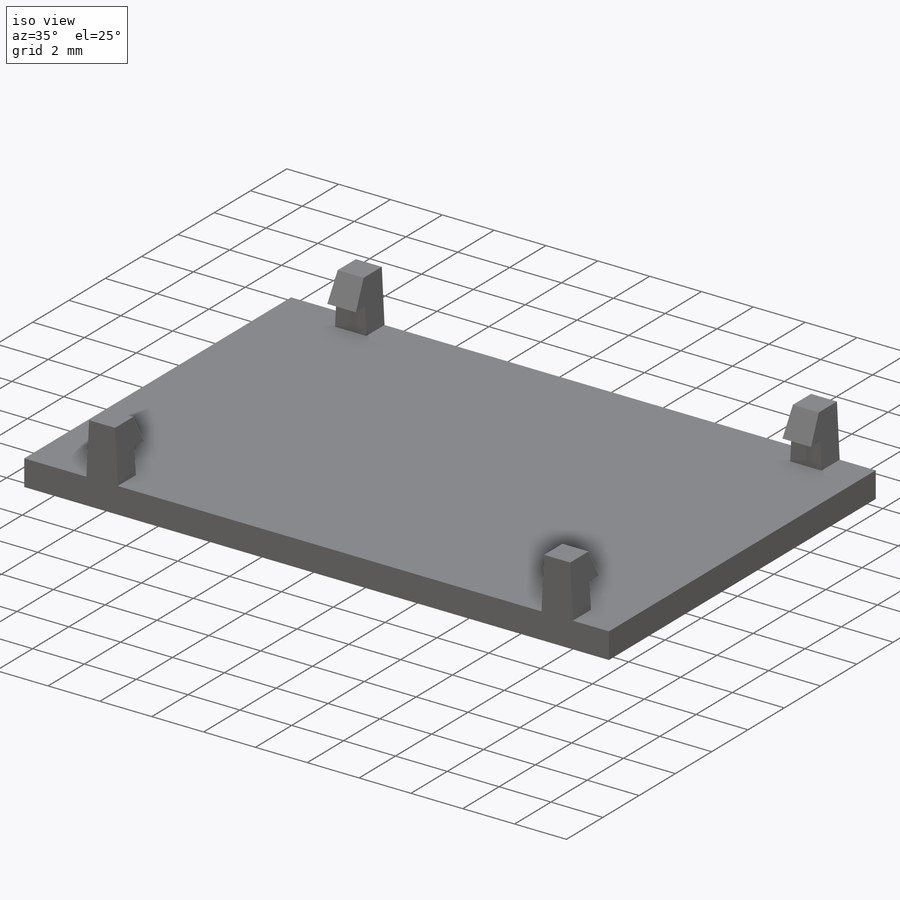
[diagram: iso view]
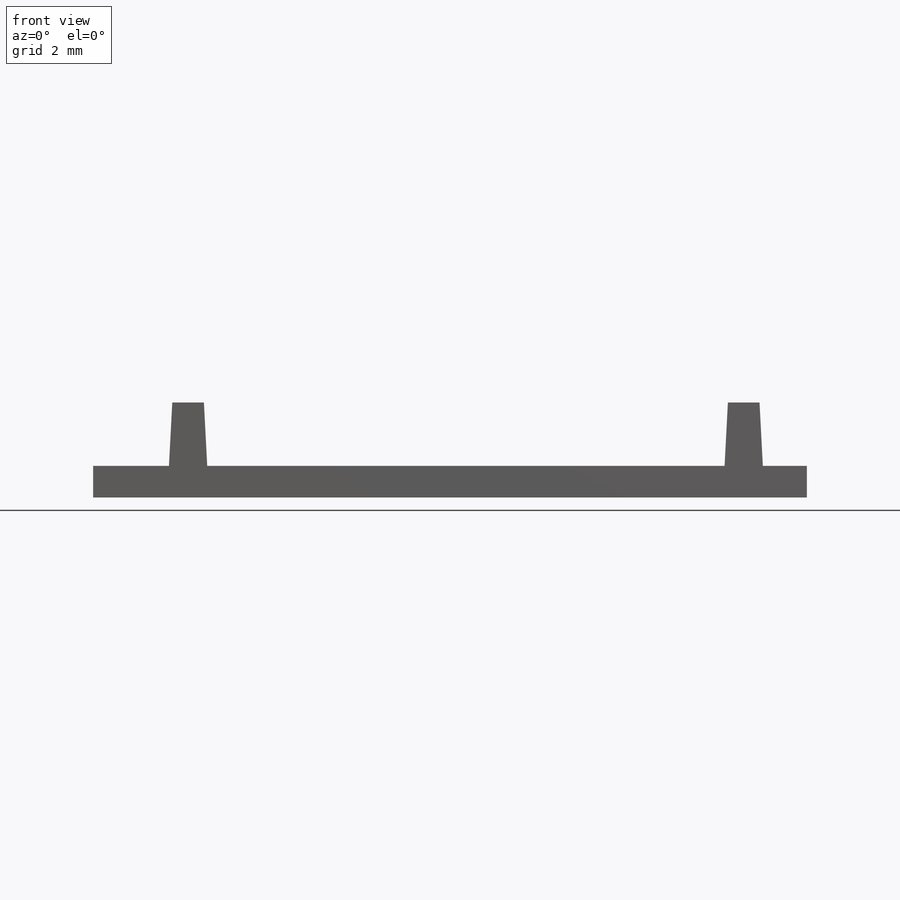
[diagram: front view]
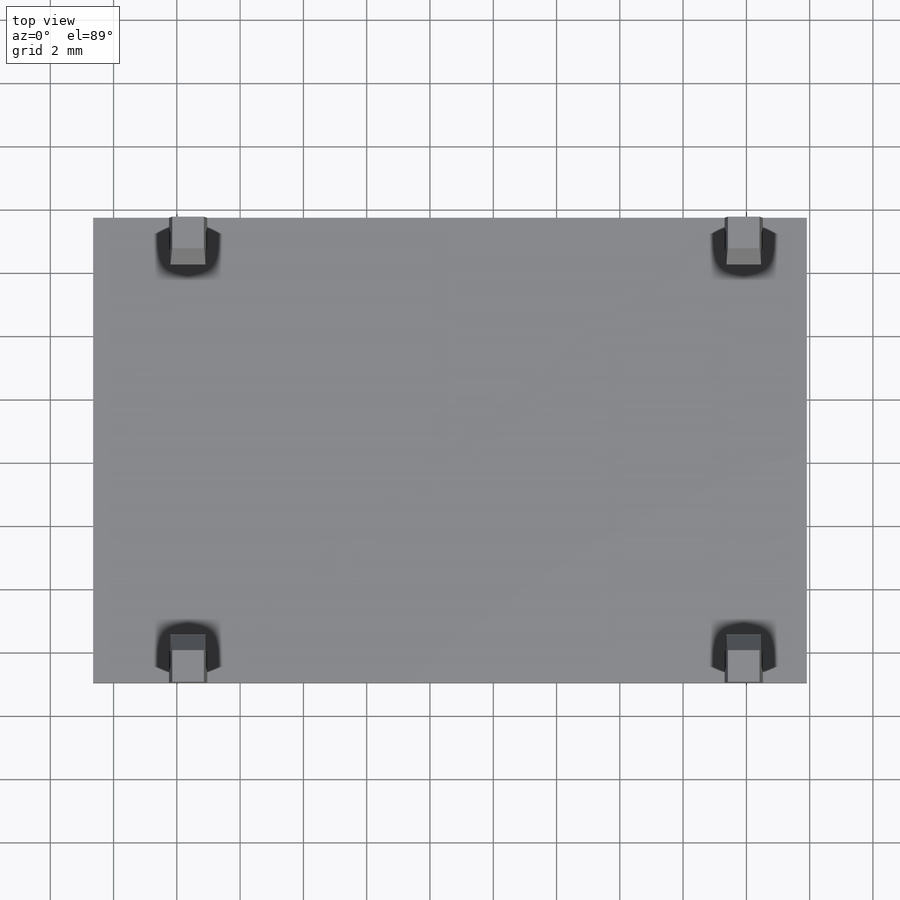
[diagram: top view]
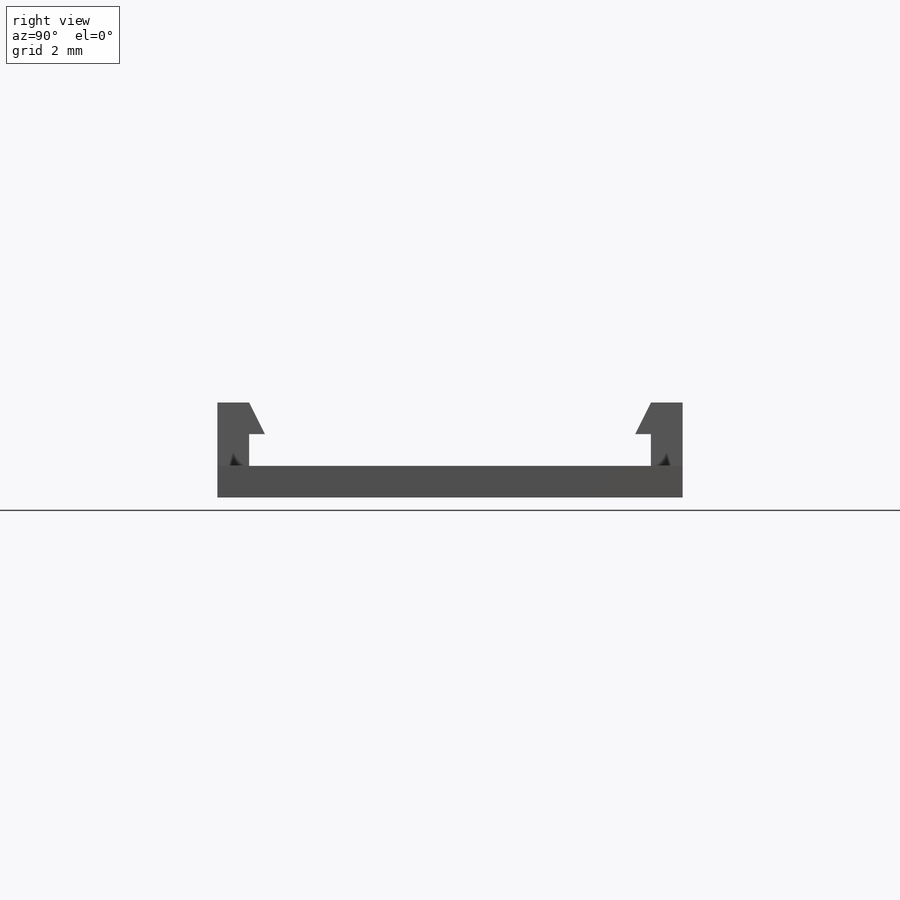
[diagram: right view]
SOLIDWORKS PART (.sldprt)
format: sldprt  version: not decoded by parser v0  size: 218,624 bytes
history: native  units: mm
features: sketch x4, pattern_linear x2, material x1, extrude x1 (+12 scaffold rows collapsed)
feature tree (20):
  scaffold x12  (default folders/planes/origin — collapsed)
  material  "Material <not specified>"
  sketch  "Sketch1"  dims[D1=14.7mm D2=22.5552mm]
  extrude  "Boss-Extrude1"  Depth=1mm
  sketch  "Sketch2"  dims[D1=1.0mm D2=1.0mm D3=2.0mm D6=1.0mm D4=2.0 D5=2.0]
  sketch  "3DSketch1"  dims[BaseDepth=1.0mm TopDepth=1.0mm Width=1.0mm HookHeight=1.0mm Overhang=0.5mm BodyHeight=1.0mm Draft=3.0deg LipHeight=0.0mm]
  pattern_linear  "LPattern1"  Count1=2 Count2=1 Spacing1=17.56mm Spacing2=10mm
  sketch  "Snap Hook2"  dims[BaseDepth=1.0mm TopDepth=1.0mm Width=1.0mm HookHeight=1.0mm Overhang=0.5mm BodyHeight=1.0mm Draft=3.0deg LipHeight=0.0mm]
  pattern_linear  "LPattern2"  Count1=2 Count2=1 Spacing1=17.56mm Spacing2=10mm
decode coverage: 7 of 7 modeling features carry decoded parameters
note: suppression state not decoded; provenance and decode notes live in map.json
